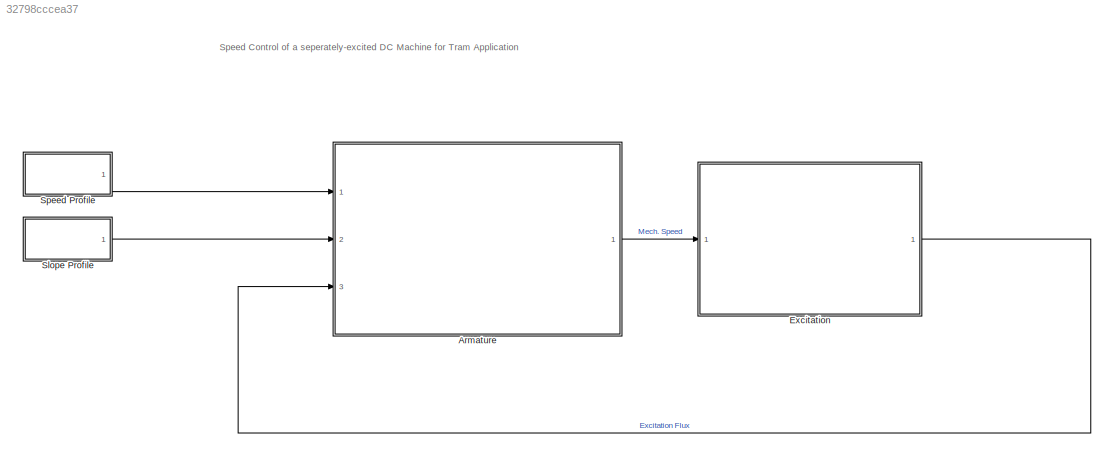
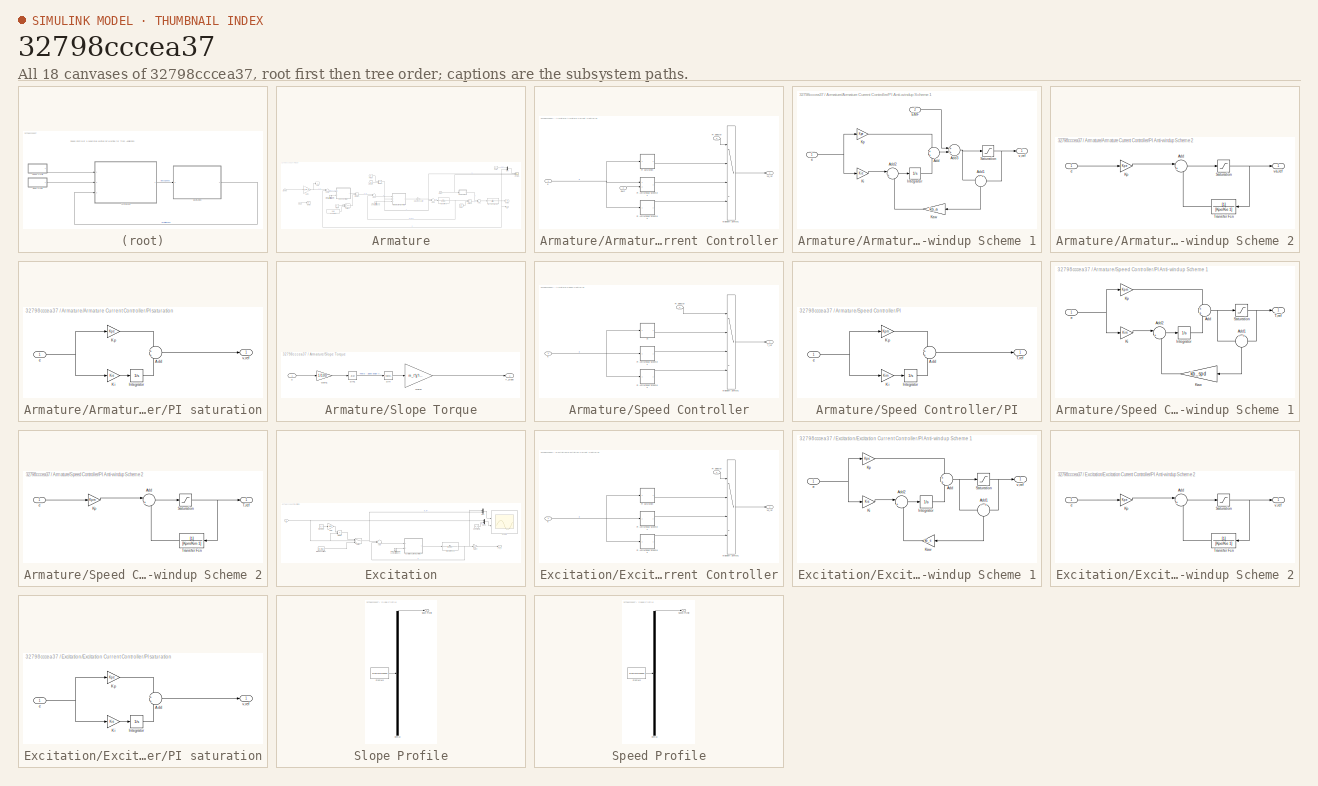
[diagram: thumbnail index - all 18 canvases of the model, root first then tree order]
MODEL slx_32798cccea37
KIND model
CONFIG AbsTol = auto
CONFIG EnableMultiTasking = off
CONFIG FixedStep = auto
CONFIG MaxStep = auto
CONFIG MinStep = auto
CONFIG RelTol = 1e-3
CONFIG SampleTimeConstraint = Unconstrained
CONFIG Solver = VariableStepAuto
CONFIG SolverName = VariableStepAuto
CONFIG StartTime = 0.0
CONFIG StopTime = 700
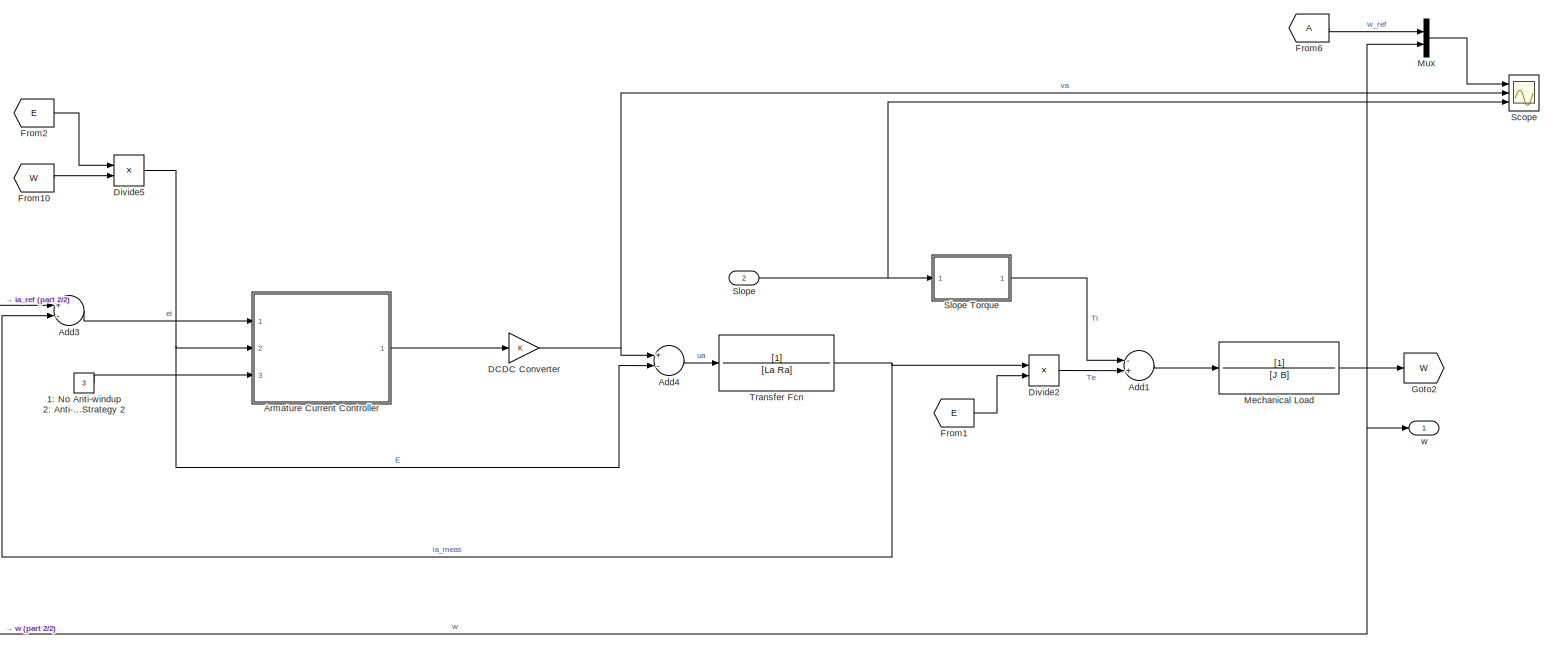
[diagram: Armature - part 1/2, right side, full height]
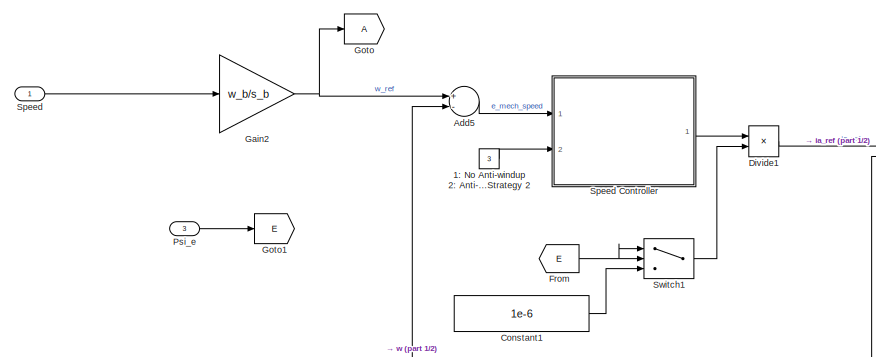
[diagram: Armature - part 2/2, middle left region]
BLOCK [SubSystem] Armature
  Ports = [3, 1]
  RequestExecContextInheritance = off
BLOCK [Constant] Armature/1: No Anti-windup 2: Anti-windup Stragtegy 1 3: Anti-windup Strategy 2
  Value = 3
BLOCK [Constant] Armature/1: No Anti-windup 2: Anti-windup Strategy 1 3: Anti-windup Strategy 2
  Value = 3
BLOCK [Sum] Armature/Add1
  InputSameDT = off
  Inputs = -+
  OutDataTypeStr = Inherit: Inherit via internal rule
  Ports = [2, 1]
  SaturateOnIntegerOverflow = off
BLOCK [Sum] Armature/Add3
  InputSameDT = off
  Inputs = +-
  OutDataTypeStr = Inherit: Inherit via internal rule
  Ports = [2, 1]
  SaturateOnIntegerOverflow = off
BLOCK [Sum] Armature/Add4
  InputSameDT = off
  Inputs = +-
  OutDataTypeStr = Inherit: Inherit via internal rule
  Ports = [2, 1]
  SaturateOnIntegerOverflow = off
BLOCK [Sum] Armature/Add5
  InputSameDT = off
  Inputs = +-
  OutDataTypeStr = Inherit: Inherit via internal rule
  Ports = [2, 1]
  SaturateOnIntegerOverflow = off
BLOCK [SubSystem] Armature/Armature Current Controller
  Ports = [3, 1]
  RequestExecContextInheritance = off
BLOCK [Inport] Armature/Armature Current Controller/EMF
  IconDisplay = Port number
  Port = 2
BLOCK [MultiPortSwitch] Armature/Armature Current Controller/Multiport Switch1
  InputSameDT = off
  Ports = [4, 1]
  SaturateOnIntegerOverflow = off
BLOCK [SubSystem] Armature/Armature Current Controller/PI Anti-windup Scheme 1
  Ports = [2, 1]
  RequestExecContextInheritance = off
BLOCK [Sum] Armature/Armature Current Controller/PI Anti-windup Scheme 1/Add
  IconShape = round
  InputSameDT = off
  OutDataTypeStr = Inherit: Inherit via internal rule
  Ports = [2, 1]
  SaturateOnIntegerOverflow = off
BLOCK [Sum] Armature/Armature Current Controller/PI Anti-windup Scheme 1/Add1
  IconShape = round
  InputSameDT = off
  Inputs = -+
  OutDataTypeStr = Inherit: Inherit via internal rule
  Ports = [2, 1]
  SaturateOnIntegerOverflow = off
BLOCK [Sum] Armature/Armature Current Controller/PI Anti-windup Scheme 1/Add2
  IconShape = round
  InputSameDT = off
  Inputs = |++
  OutDataTypeStr = Inherit: Inherit via internal rule
  Ports = [2, 1]
  SaturateOnIntegerOverflow = off
BLOCK [Sum] Armature/Armature Current Controller/PI Anti-windup Scheme 1/Add3
  InputSameDT = off
  OutDataTypeStr = Inherit: Inherit via internal rule
  Ports = [2, 1]
  SaturateOnIntegerOverflow = off
BLOCK [Inport] Armature/Armature Current Controller/PI Anti-windup Scheme 1/EMF
  IconDisplay = Port number
  Port = 2
BLOCK [Integrator] Armature/Armature Current Controller/PI Anti-windup Scheme 1/Integrator
  Ports = [1, 1]
BLOCK [Gain] Armature/Armature Current Controller/PI Anti-windup Scheme 1/Kaw
  Gain = kb_a
  OutDataTypeStr = Inherit: Inherit via internal rule
  ParamDataTypeStr = Inherit: Inherit via internal rule
  SaturateOnIntegerOverflow = off
BLOCK [Gain] Armature/Armature Current Controller/PI Anti-windup Scheme 1/Ki
  Gain = Kie
  OutDataTypeStr = Inherit: Inherit via internal rule
  ParamDataTypeStr = Inherit: Inherit via internal rule
  SaturateOnIntegerOverflow = off
BLOCK [Gain] Armature/Armature Current Controller/PI Anti-windup Scheme 1/Kp
  Gain = Kpe
  OutDataTypeStr = Inherit: Inherit via internal rule
  ParamDataTypeStr = Inherit: Inherit via internal rule
  SaturateOnIntegerOverflow = off
BLOCK [Saturate] Armature/Armature Current Controller/PI Anti-windup Scheme 1/Saturation
  InputPortMap = u0
  LowerLimit = -v_line
  Ports = [1, 1]
  UpperLimit = v_line
BLOCK [Inport] Armature/Armature Current Controller/PI Anti-windup Scheme 1/e
  IconDisplay = Port number
BLOCK [Outport] Armature/Armature Current Controller/PI Anti-windup Scheme 1/v,ref
  IconDisplay = Port number
BLOCK [SubSystem] Armature/Armature Current Controller/PI Anti-windup Scheme 2
  Ports = [1, 1]
  RequestExecContextInheritance = off
BLOCK [Sum] Armature/Armature Current Controller/PI Anti-windup Scheme 2/Add
  IconShape = round
  InputSameDT = off
  Inputs = |++
  OutDataTypeStr = Inherit: Inherit via internal rule
  Ports = [2, 1]
  SaturateOnIntegerOverflow = off
BLOCK [Gain] Armature/Armature Current Controller/PI Anti-windup Scheme 2/Kp
  Gain = Kpe
  OutDataTypeStr = Inherit: Inherit via internal rule
  ParamDataTypeStr = Inherit: Inherit via internal rule
  SaturateOnIntegerOverflow = off
BLOCK [Saturate] Armature/Armature Current Controller/PI Anti-windup Scheme 2/Saturation
  InputPortMap = u0
  LowerLimit = -v_line
  Ports = [1, 1]
  UpperLimit = v_line
BLOCK [TransferFcn] Armature/Armature Current Controller/PI Anti-windup Scheme 2/Transfer Fcn
  Denominator = [Kpe/Kie 1]
BLOCK [Inport] Armature/Armature Current Controller/PI Anti-windup Scheme 2/e
  IconDisplay = Port number
BLOCK [Outport] Armature/Armature Current Controller/PI Anti-windup Scheme 2/va,ref
  IconDisplay = Port number
BLOCK [Inport] Armature/Armature Current Controller/PI Selector 
  IconDisplay = Port number
  Port = 3
BLOCK [SubSystem] Armature/Armature Current Controller/PI saturation
  Ports = [1, 1]
  RequestExecContextInheritance = off
BLOCK [Sum] Armature/Armature Current Controller/PI saturation/Add
  IconShape = round
  InputSameDT = off
  OutDataTypeStr = Inherit: Inherit via internal rule
  Ports = [2, 1]
  SaturateOnIntegerOverflow = off
BLOCK [Integrator] Armature/Armature Current Controller/PI saturation/Integrator
  Ports = [1, 1]
BLOCK [Gain] Armature/Armature Current Controller/PI saturation/Ki
  Gain = Kie
  OutDataTypeStr = Inherit: Inherit via internal rule
  ParamDataTypeStr = Inherit: Inherit via internal rule
  SaturateOnIntegerOverflow = off
BLOCK [Gain] Armature/Armature Current Controller/PI saturation/Kp
  Gain = Kpe
  OutDataTypeStr = Inherit: Inherit via internal rule
  ParamDataTypeStr = Inherit: Inherit via internal rule
  SaturateOnIntegerOverflow = off
BLOCK [Inport] Armature/Armature Current Controller/PI saturation/e
  IconDisplay = Port number
BLOCK [Outport] Armature/Armature Current Controller/PI saturation/v,ref
  IconDisplay = Port number
BLOCK [Inport] Armature/Armature Current Controller/e
  IconDisplay = Port number
BLOCK [Outport] Armature/Armature Current Controller/va_ref 
  IconDisplay = Port number
BLOCK [Constant] Armature/Constant1
  Value = 1e-6
BLOCK [Gain] Armature/DCDC Converter
  OutDataTypeStr = Inherit: Inherit via internal rule
  ParamDataTypeStr = Inherit: Inherit via internal rule
  SaturateOnIntegerOverflow = off
BLOCK [Product] Armature/Divide1
  InputSameDT = off
  Inputs = */
  OutDataTypeStr = Inherit: Inherit via internal rule
  Ports = [2, 1]
  RndMeth = Floor
  SaturateOnIntegerOverflow = off
BLOCK [Product] Armature/Divide2
  InputSameDT = off
  Inputs = **
  OutDataTypeStr = Inherit: Inherit via internal rule
  Ports = [2, 1]
  RndMeth = Floor
  SaturateOnIntegerOverflow = off
BLOCK [Product] Armature/Divide5
  InputSameDT = off
  Inputs = **
  OutDataTypeStr = Inherit: Inherit via internal rule
  Ports = [2, 1]
  RndMeth = Floor
  SaturateOnIntegerOverflow = off
BLOCK [From] Armature/From
  GotoTag = E
BLOCK [From] Armature/From1
  GotoTag = E
BLOCK [From] Armature/From10
  GotoTag = W
BLOCK [From] Armature/From2
  GotoTag = E
BLOCK [From] Armature/From6
BLOCK [Gain] Armature/Gain2
  Gain = w_b/s_b
  OutDataTypeStr = Inherit: Inherit via internal rule
  ParamDataTypeStr = Inherit: Inherit via internal rule
  SaturateOnIntegerOverflow = off
BLOCK [Goto] Armature/Goto
BLOCK [Goto] Armature/Goto1
  GotoTag = E
BLOCK [Goto] Armature/Goto2
  GotoTag = W
BLOCK [TransferFcn] Armature/Mechanical Load
  Denominator = [J B]
BLOCK [Mux] Armature/Mux
  DisplayOption = bar
  Inputs = 2
  Ports = [2, 1]
BLOCK [Inport] Armature/Psi_e
  IconDisplay = Port number
  Port = 3
BLOCK [Scope] Armature/Scope
  Floating = off
  NumInputPorts = 3
  Ports = [3]
  ScopeSpecificationString = Simulink.scopes.TimeScopeBlockCfg('CurrentConfiguration', extmgr.ConfigurationSet(extmgr.Configuration('Core','General UI',true),extmgr.Configuration('Core','Source UI',true),extmgr.Configuration('Sources','WiredSimulink',true),extmgr.Configuration('Visuals','Time Domain',true,'SerializedDisplays',{struct('MinYLimReal','-49.22212','MaxYLimReal','442.99907','YLabelReal','','MinYLimMag','0.00000','M...<+2769ch>
BLOCK [Inport] Armature/Slope
  IconDisplay = Port number
  Port = 2
BLOCK [SubSystem] Armature/Slope Torque
  Ports = [1, 1]
  RequestExecContextInheritance = off
BLOCK [Gain] Armature/Slope Torque/Gain1
  Gain = 1/100
  OutDataTypeStr = Inherit: Inherit via internal rule
  ParamDataTypeStr = Inherit: Inherit via internal rule
  SaturateOnIntegerOverflow = off
BLOCK [Gain] Armature/Slope Torque/Gain2
  Gain = m_t*g*r_whl
  OutDataTypeStr = Inherit: Inherit via internal rule
  ParamDataTypeStr = Inherit: Inherit via internal rule
  SaturateOnIntegerOverflow = off
BLOCK [Inport] Armature/Slope Torque/S
  IconDisplay = Port number
BLOCK [Trigonometry] Armature/Slope Torque/Sin
  Ports = [1, 1]
BLOCK [Trigonometry] Armature/Slope Torque/Sin1
  Operator = atan
  Ports = [1, 1]
BLOCK [Outport] Armature/Slope Torque/T_slope
  IconDisplay = Port number
BLOCK [Inport] Armature/Speed
  IconDisplay = Port number
BLOCK [SubSystem] Armature/Speed Controller
  Ports = [2, 1]
  RequestExecContextInheritance = off
BLOCK [MultiPortSwitch] Armature/Speed Controller/Multiport Switch1
  InputSameDT = off
  Ports = [4, 1]
  SaturateOnIntegerOverflow = off
BLOCK [SubSystem] Armature/Speed Controller/PI
  Ports = [1, 1]
  RequestExecContextInheritance = off
BLOCK [SubSystem] Armature/Speed Controller/PI Anti-windup Scheme 1
  Ports = [1, 1]
  RequestExecContextInheritance = off
BLOCK [Sum] Armature/Speed Controller/PI Anti-windup Scheme 1/Add
  IconShape = round
  InputSameDT = off
  OutDataTypeStr = Inherit: Inherit via internal rule
  Ports = [2, 1]
  SaturateOnIntegerOverflow = off
BLOCK [Sum] Armature/Speed Controller/PI Anti-windup Scheme 1/Add1
  IconShape = round
  InputSameDT = off
  Inputs = -+
  OutDataTypeStr = Inherit: Inherit via internal rule
  Ports = [2, 1]
  SaturateOnIntegerOverflow = off
BLOCK [Sum] Armature/Speed Controller/PI Anti-windup Scheme 1/Add2
  IconShape = round
  InputSameDT = off
  Inputs = |++
  OutDataTypeStr = Inherit: Inherit via internal rule
  Ports = [2, 1]
  SaturateOnIntegerOverflow = off
BLOCK [Integrator] Armature/Speed Controller/PI Anti-windup Scheme 1/Integrator
  Ports = [1, 1]
BLOCK [Gain] Armature/Speed Controller/PI Anti-windup Scheme 1/Kaw
  Gain = kb_spd
  OutDataTypeStr = Inherit: Inherit via internal rule
  ParamDataTypeStr = Inherit: Inherit via internal rule
  SaturateOnIntegerOverflow = off
BLOCK [Gain] Armature/Speed Controller/PI Anti-windup Scheme 1/Ki
  Gain = Kim
  OutDataTypeStr = Inherit: Inherit via internal rule
  ParamDataTypeStr = Inherit: Inherit via internal rule
  SaturateOnIntegerOverflow = off
BLOCK [Gain] Armature/Speed Controller/PI Anti-windup Scheme 1/Kp
  Gain = Kpm
  OutDataTypeStr = Inherit: Inherit via internal rule
  ParamDataTypeStr = Inherit: Inherit via internal rule
  SaturateOnIntegerOverflow = off
BLOCK [Saturate] Armature/Speed Controller/PI Anti-windup Scheme 1/Saturation
  InputPortMap = u0
  LowerLimit = -Te_n
  Ports = [1, 1]
  UpperLimit = Te_n
BLOCK [Outport] Armature/Speed Controller/PI Anti-windup Scheme 1/T,ref
  IconDisplay = Port number
BLOCK [Inport] Armature/Speed Controller/PI Anti-windup Scheme 1/e
  IconDisplay = Port number
BLOCK [SubSystem] Armature/Speed Controller/PI Anti-windup Scheme 2
  Ports = [1, 1]
  RequestExecContextInheritance = off
BLOCK [Sum] Armature/Speed Controller/PI Anti-windup Scheme 2/Add
  IconShape = round
  InputSameDT = off
  Inputs = |++
  OutDataTypeStr = Inherit: Inherit via internal rule
  Ports = [2, 1]
  SaturateOnIntegerOverflow = off
BLOCK [Gain] Armature/Speed Controller/PI Anti-windup Scheme 2/Kp
  Gain = Kpm
  OutDataTypeStr = Inherit: Inherit via internal rule
  ParamDataTypeStr = Inherit: Inherit via internal rule
  SaturateOnIntegerOverflow = off
BLOCK [Saturate] Armature/Speed Controller/PI Anti-windup Scheme 2/Saturation
  InputPortMap = u0
  LowerLimit = -Te_n
  Ports = [1, 1]
  UpperLimit = Te_n
BLOCK [Outport] Armature/Speed Controller/PI Anti-windup Scheme 2/T,ref
  IconDisplay = Port number
BLOCK [TransferFcn] Armature/Speed Controller/PI Anti-windup Scheme 2/Transfer Fcn
  Denominator = [Kpm/Kim 1]
BLOCK [Inport] Armature/Speed Controller/PI Anti-windup Scheme 2/e
  IconDisplay = Port number
BLOCK [Inport] Armature/Speed Controller/PI Selector
  IconDisplay = Port number
  Port = 2
BLOCK [Sum] Armature/Speed Controller/PI/Add
  IconShape = round
  InputSameDT = off
  OutDataTypeStr = Inherit: Inherit via internal rule
  Ports = [2, 1]
  SaturateOnIntegerOverflow = off
BLOCK [Integrator] Armature/Speed Controller/PI/Integrator
  Ports = [1, 1]
BLOCK [Gain] Armature/Speed Controller/PI/Ki
  Gain = Kim
  OutDataTypeStr = Inherit: Inherit via internal rule
  ParamDataTypeStr = Inherit: Inherit via internal rule
  SaturateOnIntegerOverflow = off
BLOCK [Gain] Armature/Speed Controller/PI/Kp
  Gain = Kpm
  OutDataTypeStr = Inherit: Inherit via internal rule
  ParamDataTypeStr = Inherit: Inherit via internal rule
  SaturateOnIntegerOverflow = off
BLOCK [Outport] Armature/Speed Controller/PI/T,ref
  IconDisplay = Port number
BLOCK [Inport] Armature/Speed Controller/PI/e
  IconDisplay = Port number
BLOCK [Outport] Armature/Speed Controller/T_ref 
  IconDisplay = Port number
BLOCK [Inport] Armature/Speed Controller/e
  IconDisplay = Port number
BLOCK [Switch] Armature/Switch1
  Criteria = u2 > Threshold
  InputSameDT = off
  SaturateOnIntegerOverflow = off
BLOCK [TransferFcn] Armature/Transfer Fcn
  Denominator = [La Ra]
BLOCK [Outport] Armature/w
  IconDisplay = Port number
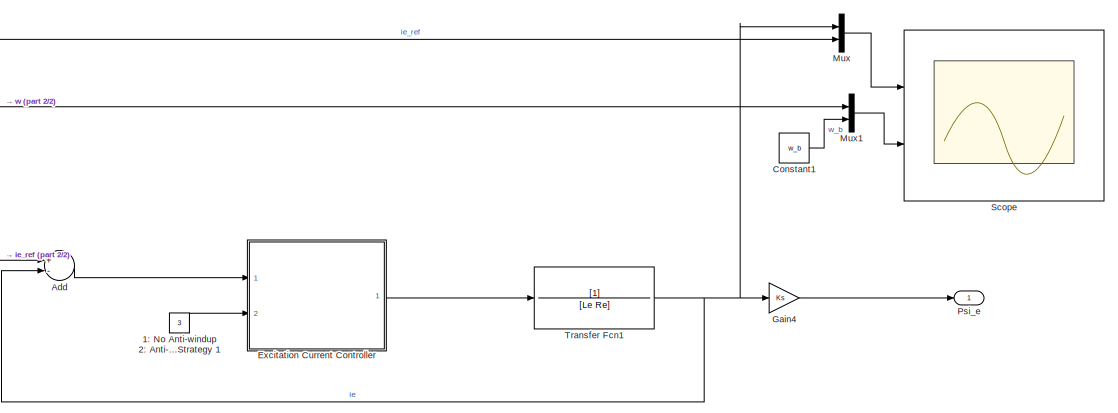
[diagram: Excitation - part 1/2, right side, full height]
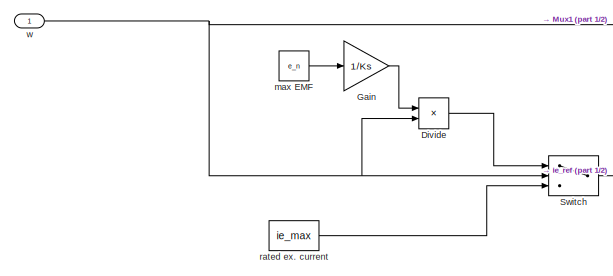
[diagram: Excitation - part 2/2, middle left region]
BLOCK [SubSystem] Excitation
  Ports = [1, 1]
  RequestExecContextInheritance = off
BLOCK [Constant] Excitation/1: No Anti-windup 2: Anti-windup Strategy 1 3: Anti-windup Strategy 1
  Value = 3
BLOCK [Sum] Excitation/Add
  InputSameDT = off
  Inputs = +-
  OutDataTypeStr = Inherit: Inherit via internal rule
  Ports = [2, 1]
  SaturateOnIntegerOverflow = off
BLOCK [Constant] Excitation/Constant1
  Value = w_b
BLOCK [Product] Excitation/Divide
  InputSameDT = off
  Inputs = */
  OutDataTypeStr = Inherit: Inherit via internal rule
  Ports = [2, 1]
  RndMeth = Floor
  SaturateOnIntegerOverflow = off
BLOCK [SubSystem] Excitation/Excitation Current Controller
  Ports = [2, 1]
  RequestExecContextInheritance = off
BLOCK [MultiPortSwitch] Excitation/Excitation Current Controller/Multiport Switch1
  InputSameDT = off
  Ports = [4, 1]
  SaturateOnIntegerOverflow = off
BLOCK [SubSystem] Excitation/Excitation Current Controller/PI Anti-windup Scheme 1
  Ports = [1, 1]
  RequestExecContextInheritance = off
BLOCK [Sum] Excitation/Excitation Current Controller/PI Anti-windup Scheme 1/Add
  IconShape = round
  InputSameDT = off
  OutDataTypeStr = Inherit: Inherit via internal rule
  Ports = [2, 1]
  SaturateOnIntegerOverflow = off
BLOCK [Sum] Excitation/Excitation Current Controller/PI Anti-windup Scheme 1/Add1
  IconShape = round
  InputSameDT = off
  Inputs = -+
  OutDataTypeStr = Inherit: Inherit via internal rule
  Ports = [2, 1]
  SaturateOnIntegerOverflow = off
BLOCK [Sum] Excitation/Excitation Current Controller/PI Anti-windup Scheme 1/Add2
  IconShape = round
  InputSameDT = off
  Inputs = |++
  OutDataTypeStr = Inherit: Inherit via internal rule
  Ports = [2, 1]
  SaturateOnIntegerOverflow = off
BLOCK [Integrator] Excitation/Excitation Current Controller/PI Anti-windup Scheme 1/Integrator
  Ports = [1, 1]
BLOCK [Gain] Excitation/Excitation Current Controller/PI Anti-windup Scheme 1/Kaw
  Gain = kb_e
  OutDataTypeStr = Inherit: Inherit via internal rule
  ParamDataTypeStr = Inherit: Inherit via internal rule
  SaturateOnIntegerOverflow = off
BLOCK [Gain] Excitation/Excitation Current Controller/PI Anti-windup Scheme 1/Ki
  Gain = Kie
  OutDataTypeStr = Inherit: Inherit via internal rule
  ParamDataTypeStr = Inherit: Inherit via internal rule
  SaturateOnIntegerOverflow = off
BLOCK [Gain] Excitation/Excitation Current Controller/PI Anti-windup Scheme 1/Kp
  Gain = Kpe
  OutDataTypeStr = Inherit: Inherit via internal rule
  ParamDataTypeStr = Inherit: Inherit via internal rule
  SaturateOnIntegerOverflow = off
BLOCK [Saturate] Excitation/Excitation Current Controller/PI Anti-windup Scheme 1/Saturation
  InputPortMap = u0
  LowerLimit = -ve_max
  Ports = [1, 1]
  UpperLimit = ve_max
BLOCK [Inport] Excitation/Excitation Current Controller/PI Anti-windup Scheme 1/e
  IconDisplay = Port number
BLOCK [Outport] Excitation/Excitation Current Controller/PI Anti-windup Scheme 1/v,ref
  IconDisplay = Port number
BLOCK [SubSystem] Excitation/Excitation Current Controller/PI Anti-windup Scheme 2
  Ports = [1, 1]
  RequestExecContextInheritance = off
BLOCK [Sum] Excitation/Excitation Current Controller/PI Anti-windup Scheme 2/Add
  IconShape = round
  InputSameDT = off
  Inputs = |++
  OutDataTypeStr = Inherit: Inherit via internal rule
  Ports = [2, 1]
  SaturateOnIntegerOverflow = off
BLOCK [Gain] Excitation/Excitation Current Controller/PI Anti-windup Scheme 2/Kp
  Gain = Kpe
  OutDataTypeStr = Inherit: Inherit via internal rule
  ParamDataTypeStr = Inherit: Inherit via internal rule
  SaturateOnIntegerOverflow = off
BLOCK [Saturate] Excitation/Excitation Current Controller/PI Anti-windup Scheme 2/Saturation
  InputPortMap = u0
  LowerLimit = -ve_max
  Ports = [1, 1]
  UpperLimit = ve_max
BLOCK [TransferFcn] Excitation/Excitation Current Controller/PI Anti-windup Scheme 2/Transfer Fcn
  Denominator = [Kpe/Kie 1]
BLOCK [Inport] Excitation/Excitation Current Controller/PI Anti-windup Scheme 2/e
  IconDisplay = Port number
BLOCK [Outport] Excitation/Excitation Current Controller/PI Anti-windup Scheme 2/v,ref
  IconDisplay = Port number
BLOCK [Inport] Excitation/Excitation Current Controller/PI Selector 
  IconDisplay = Port number
  Port = 2
BLOCK [SubSystem] Excitation/Excitation Current Controller/PI saturation
  Ports = [1, 1]
  RequestExecContextInheritance = off
BLOCK [Sum] Excitation/Excitation Current Controller/PI saturation/Add
  IconShape = round
  InputSameDT = off
  OutDataTypeStr = Inherit: Inherit via internal rule
  Ports = [2, 1]
  SaturateOnIntegerOverflow = off
BLOCK [Integrator] Excitation/Excitation Current Controller/PI saturation/Integrator
  Ports = [1, 1]
BLOCK [Gain] Excitation/Excitation Current Controller/PI saturation/Ki
  Gain = Kie
  OutDataTypeStr = Inherit: Inherit via internal rule
  ParamDataTypeStr = Inherit: Inherit via internal rule
  SaturateOnIntegerOverflow = off
BLOCK [Gain] Excitation/Excitation Current Controller/PI saturation/Kp
  Gain = Kpe
  OutDataTypeStr = Inherit: Inherit via internal rule
  ParamDataTypeStr = Inherit: Inherit via internal rule
  SaturateOnIntegerOverflow = off
BLOCK [Inport] Excitation/Excitation Current Controller/PI saturation/e
  IconDisplay = Port number
BLOCK [Outport] Excitation/Excitation Current Controller/PI saturation/v,ref
  IconDisplay = Port number
BLOCK [Inport] Excitation/Excitation Current Controller/e
  IconDisplay = Port number
BLOCK [Outport] Excitation/Excitation Current Controller/ve_ref 
  IconDisplay = Port number
BLOCK [Gain] Excitation/Gain
  Gain = 1/Ks
  OutDataTypeStr = Inherit: Inherit via internal rule
  ParamDataTypeStr = Inherit: Inherit via internal rule
  SaturateOnIntegerOverflow = off
BLOCK [Gain] Excitation/Gain4
  Gain = Ks
  OutDataTypeStr = Inherit: Inherit via internal rule
  ParamDataTypeStr = Inherit: Inherit via internal rule
  SaturateOnIntegerOverflow = off
BLOCK [Mux] Excitation/Mux
  DisplayOption = bar
  Inputs = 2
  Ports = [2, 1]
BLOCK [Mux] Excitation/Mux1
  DisplayOption = bar
  Inputs = 2
  Ports = [2, 1]
BLOCK [Outport] Excitation/Psi_e
  IconDisplay = Port number
BLOCK [Scope] Excitation/Scope
  Floating = off
  NumInputPorts = 2
  Ports = [2]
  ScopeSpecificationString = Simulink.scopes.TimeScopeBlockCfg('CurrentConfiguration', extmgr.ConfigurationSet(extmgr.Configuration('Core','General UI',true),extmgr.Configuration('Core','Source UI',true),extmgr.Configuration('Sources','WiredSimulink',true,'DataLoggingVariableName','ScopeData1'),extmgr.Configuration('Visuals','Time Domain',true,'SerializedDisplays',{struct('MinYLimReal','-0.125','MaxYLimReal','1.125','YLabelRe...<+2074ch>
BLOCK [Switch] Excitation/Switch
  Criteria = u2 > Threshold
  InputSameDT = off
  SaturateOnIntegerOverflow = off
  Threshold = w_b
BLOCK [TransferFcn] Excitation/Transfer Fcn1
  Denominator = [Le Re]
BLOCK [Constant] Excitation/max EMF
  Value = e_n
BLOCK [Constant] Excitation/rated ex. current
  Value = ie_max
BLOCK [Inport] Excitation/w
  IconDisplay = Port number
BLOCK [SubSystem] Slope Profile
  ClipboardFcn = sigbuilder_block('clipboard');
  CloseFcn = sigbuilder_block('close');
  ContinueFcn = sigbuilder_block('continue');
  CopyFcn = sigbuilder_block('copy');
  DeleteFcn = sigbuilder_block('delete');
  LoadFcn = sigbuilder_block('load');
  MaskHideContents = on
  ModelCloseFcn = sigbuilder_block('modelClose');
  NameChangeFcn = sigbuilder_block('namechange');
  OpenFcn = sigbuilder_block('open',[437.6 199.2 550.4 400 ]);
  PauseFcn = sigbuilder_block('pause');
  Ports = [0, 1]
  PreSaveFcn = sigbuilder_block('preSave');
  RequestExecContextInheritance = off
  StartFcn = sigbuilder_block('start');
  StopFcn = sigbuilder_block('stop');
  Tag = STV Subsys
BLOCK [Demux] Slope Profile/Demux
  Outputs = 1
  Ports = [1, 1]
  Tag = STV Demux
BLOCK [FromWorkspace] Slope Profile/FromWs
  SampleTime = 0
  Tag = STV FromWs
  VariableName = tuvar
  ZeroCross = on
BLOCK [Outport] Slope Profile/Slope Profile
  IconDisplay = Port number
  Tag = STV Outport
BLOCK [SubSystem] Speed Profile
  ClipboardFcn = sigbuilder_block('clipboard');
  CloseFcn = sigbuilder_block('close');
  ContinueFcn = sigbuilder_block('continue');
  CopyFcn = sigbuilder_block('copy');
  DeleteFcn = sigbuilder_block('delete');
  LoadFcn = sigbuilder_block('load');
  MaskHideContents = on
  ModelCloseFcn = sigbuilder_block('modelClose');
  NameChangeFcn = sigbuilder_block('namechange');
  OpenFcn = sigbuilder_block('open',[437.6 199.2 550.4 400 ]);
  PauseFcn = sigbuilder_block('pause');
  Ports = [0, 1]
  PreSaveFcn = sigbuilder_block('preSave');
  RequestExecContextInheritance = off
  StartFcn = sigbuilder_block('start');
  StopFcn = sigbuilder_block('stop');
  Tag = STV Subsys
BLOCK [Demux] Speed Profile/Demux
  Outputs = 1
  Ports = [1, 1]
  Tag = STV Demux
BLOCK [FromWorkspace] Speed Profile/FromWs
  SampleTime = 0
  Tag = STV FromWs
  VariableName = tuvar
  ZeroCross = on
BLOCK [Outport] Speed Profile/Speed Profile
  IconDisplay = Port number
  Tag = STV Outport
ANNOTATION (root): Speed Control of a seperately-excited DC Machine for Tram Application
LINE Armature/1: No Anti-windup 2: Anti-windup Stragtegy 1 3: Anti-windup Strategy 2:1 -> Armature/Speed Controller:2
LINE Armature/1: No Anti-windup 2: Anti-windup Strategy 1 3: Anti-windup Strategy 2:1 -> Armature/Armature Current Controller:3
LINE Armature/Add1:1 -> Armature/Mechanical Load:1
LINE Armature/Add3:1 -> Armature/Armature Current Controller:1
LINE Armature/Add4:1 -> Armature/Transfer Fcn:1
LINE Armature/Add5:1 -> Armature/Speed Controller:1
LINE Armature/Armature Current Controller/EMF:1 -> Armature/Armature Current Controller/PI Anti-windup Scheme 1:2
LINE Armature/Armature Current Controller/Multiport Switch1:1 -> Armature/Armature Current Controller/va_ref :1
LINE Armature/Armature Current Controller/PI Anti-windup Scheme 1/Add1:1 -> Armature/Armature Current Controller/PI Anti-windup Scheme 1/Kaw:1
LINE Armature/Armature Current Controller/PI Anti-windup Scheme 1/Add2:1 -> Armature/Armature Current Controller/PI Anti-windup Scheme 1/Integrator:1
NET Armature/Armature Current Controller/PI Anti-windup Scheme 1/Add3:1 -> Armature/Armature Current Controller/PI Anti-windup Scheme 1/Add1:1, Armature/Armature Current Controller/PI Anti-windup Scheme 1/Saturation:1
LINE Armature/Armature Current Controller/PI Anti-windup Scheme 1/Add:1 -> Armature/Armature Current Controller/PI Anti-windup Scheme 1/Add3:2
LINE Armature/Armature Current Controller/PI Anti-windup Scheme 1/EMF:1 -> Armature/Armature Current Controller/PI Anti-windup Scheme 1/Add3:1
LINE Armature/Armature Current Controller/PI Anti-windup Scheme 1/Integrator:1 -> Armature/Armature Current Controller/PI Anti-windup Scheme 1/Add:2
LINE Armature/Armature Current Controller/PI Anti-windup Scheme 1/Kaw:1 -> Armature/Armature Current Controller/PI Anti-windup Scheme 1/Add2:2
LINE Armature/Armature Current Controller/PI Anti-windup Scheme 1/Ki:1 -> Armature/Armature Current Controller/PI Anti-windup Scheme 1/Add2:1
LINE Armature/Armature Current Controller/PI Anti-windup Scheme 1/Kp:1 -> Armature/Armature Current Controller/PI Anti-windup Scheme 1/Add:1
NET Armature/Armature Current Controller/PI Anti-windup Scheme 1/Saturation:1 -> Armature/Armature Current Controller/PI Anti-windup Scheme 1/Add1:2, Armature/Armature Current Controller/PI Anti-windup Scheme 1/v,ref:1
NET Armature/Armature Current Controller/PI Anti-windup Scheme 1/e:1 -> Armature/Armature Current Controller/PI Anti-windup Scheme 1/Ki:1, Armature/Armature Current Controller/PI Anti-windup Scheme 1/Kp:1
LINE Armature/Armature Current Controller/PI Anti-windup Scheme 1:1 -> Armature/Armature Current Controller/Multiport Switch1:3
LINE Armature/Armature Current Controller/PI Anti-windup Scheme 2/Add:1 -> Armature/Armature Current Controller/PI Anti-windup Scheme 2/Saturation:1
LINE Armature/Armature Current Controller/PI Anti-windup Scheme 2/Kp:1 -> Armature/Armature Current Controller/PI Anti-windup Scheme 2/Add:1
NET Armature/Armature Current Controller/PI Anti-windup Scheme 2/Saturation:1 -> Armature/Armature Current Controller/PI Anti-windup Scheme 2/Transfer Fcn:1, Armature/Armature Current Controller/PI Anti-windup Scheme 2/va,ref:1
LINE Armature/Armature Current Controller/PI Anti-windup Scheme 2/Transfer Fcn:1 -> Armature/Armature Current Controller/PI Anti-windup Scheme 2/Add:2
LINE Armature/Armature Current Controller/PI Anti-windup Scheme 2/e:1 -> Armature/Armature Current Controller/PI Anti-windup Scheme 2/Kp:1
LINE Armature/Armature Current Controller/PI Anti-windup Scheme 2:1 -> Armature/Armature Current Controller/Multiport Switch1:4
LINE Armature/Armature Current Controller/PI Selector :1 -> Armature/Armature Current Controller/Multiport Switch1:1
LINE Armature/Armature Current Controller/PI saturation/Add:1 -> Armature/Armature Current Controller/PI saturation/v,ref:1
LINE Armature/Armature Current Controller/PI saturation/Integrator:1 -> Armature/Armature Current Controller/PI saturation/Add:2
LINE Armature/Armature Current Controller/PI saturation/Ki:1 -> Armature/Armature Current Controller/PI saturation/Integrator:1
LINE Armature/Armature Current Controller/PI saturation/Kp:1 -> Armature/Armature Current Controller/PI saturation/Add:1
NET Armature/Armature Current Controller/PI saturation/e:1 -> Armature/Armature Current Controller/PI saturation/Ki:1, Armature/Armature Current Controller/PI saturation/Kp:1
LINE Armature/Armature Current Controller/PI saturation:1 -> Armature/Armature Current Controller/Multiport Switch1:2
NET Armature/Armature Current Controller/e:1 -> Armature/Armature Current Controller/PI Anti-windup Scheme 1:1, Armature/Armature Current Controller/PI Anti-windup Scheme 2:1, Armature/Armature Current Controller/PI saturation:1
LINE Armature/Armature Current Controller:1 -> Armature/DCDC Converter:1
LINE Armature/Constant1:1 -> Armature/Switch1:3
NET Armature/DCDC Converter:1 -> Armature/Add4:1, Armature/Scope:2
LINE Armature/Divide1:1 -> Armature/Add3:1
LINE Armature/Divide2:1 -> Armature/Add1:2
NET Armature/Divide5:1 -> Armature/Add4:2, Armature/Armature Current Controller:2
LINE Armature/From10:1 -> Armature/Divide5:2
LINE Armature/From1:1 -> Armature/Divide2:2
LINE Armature/From2:1 -> Armature/Divide5:1
LINE Armature/From6:1 -> Armature/Mux:1
NET Armature/From:1 -> Armature/Switch1:1, Armature/Switch1:2
NET Armature/Gain2:1 -> Armature/Add5:1, Armature/Goto:1
NET Armature/Mechanical Load:1 -> Armature/Add5:2, Armature/Goto2:1, Armature/Mux:2, Armature/w:1
LINE Armature/Mux:1 -> Armature/Scope:1
LINE Armature/Psi_e:1 -> Armature/Goto1:1
LINE Armature/Slope Torque/Gain1:1 -> Armature/Slope Torque/Sin1:1
LINE Armature/Slope Torque/Gain2:1 -> Armature/Slope Torque/T_slope:1
LINE Armature/Slope Torque/S:1 -> Armature/Slope Torque/Gain1:1
LINE Armature/Slope Torque/Sin1:1 -> Armature/Slope Torque/Sin:1
LINE Armature/Slope Torque/Sin:1 -> Armature/Slope Torque/Gain2:1
LINE Armature/Slope Torque:1 -> Armature/Add1:1
NET Armature/Slope:1 -> Armature/Scope:3, Armature/Slope Torque:1
LINE Armature/Speed Controller/Multiport Switch1:1 -> Armature/Speed Controller/T_ref :1
LINE Armature/Speed Controller/PI Anti-windup Scheme 1/Add1:1 -> Armature/Speed Controller/PI Anti-windup Scheme 1/Kaw:1
LINE Armature/Speed Controller/PI Anti-windup Scheme 1/Add2:1 -> Armature/Speed Controller/PI Anti-windup Scheme 1/Integrator:1
NET Armature/Speed Controller/PI Anti-windup Scheme 1/Add:1 -> Armature/Speed Controller/PI Anti-windup Scheme 1/Add1:1, Armature/Speed Controller/PI Anti-windup Scheme 1/Saturation:1
LINE Armature/Speed Controller/PI Anti-windup Scheme 1/Integrator:1 -> Armature/Speed Controller/PI Anti-windup Scheme 1/Add:2
LINE Armature/Speed Controller/PI Anti-windup Scheme 1/Kaw:1 -> Armature/Speed Controller/PI Anti-windup Scheme 1/Add2:2
LINE Armature/Speed Controller/PI Anti-windup Scheme 1/Ki:1 -> Armature/Speed Controller/PI Anti-windup Scheme 1/Add2:1
LINE Armature/Speed Controller/PI Anti-windup Scheme 1/Kp:1 -> Armature/Speed Controller/PI Anti-windup Scheme 1/Add:1
NET Armature/Speed Controller/PI Anti-windup Scheme 1/Saturation:1 -> Armature/Speed Controller/PI Anti-windup Scheme 1/Add1:2, Armature/Speed Controller/PI Anti-windup Scheme 1/T,ref:1
NET Armature/Speed Controller/PI Anti-windup Scheme 1/e:1 -> Armature/Speed Controller/PI Anti-windup Scheme 1/Ki:1, Armature/Speed Controller/PI Anti-windup Scheme 1/Kp:1
LINE Armature/Speed Controller/PI Anti-windup Scheme 1:1 -> Armature/Speed Controller/Multiport Switch1:3
LINE Armature/Speed Controller/PI Anti-windup Scheme 2/Add:1 -> Armature/Speed Controller/PI Anti-windup Scheme 2/Saturation:1
LINE Armature/Speed Controller/PI Anti-windup Scheme 2/Kp:1 -> Armature/Speed Controller/PI Anti-windup Scheme 2/Add:1
NET Armature/Speed Controller/PI Anti-windup Scheme 2/Saturation:1 -> Armature/Speed Controller/PI Anti-windup Scheme 2/T,ref:1, Armature/Speed Controller/PI Anti-windup Scheme 2/Transfer Fcn:1
LINE Armature/Speed Controller/PI Anti-windup Scheme 2/Transfer Fcn:1 -> Armature/Speed Controller/PI Anti-windup Scheme 2/Add:2
LINE Armature/Speed Controller/PI Anti-windup Scheme 2/e:1 -> Armature/Speed Controller/PI Anti-windup Scheme 2/Kp:1
LINE Armature/Speed Controller/PI Anti-windup Scheme 2:1 -> Armature/Speed Controller/Multiport Switch1:4
LINE Armature/Speed Controller/PI Selector:1 -> Armature/Speed Controller/Multiport Switch1:1
LINE Armature/Speed Controller/PI/Add:1 -> Armature/Speed Controller/PI/T,ref:1
LINE Armature/Speed Controller/PI/Integrator:1 -> Armature/Speed Controller/PI/Add:2
LINE Armature/Speed Controller/PI/Ki:1 -> Armature/Speed Controller/PI/Integrator:1
LINE Armature/Speed Controller/PI/Kp:1 -> Armature/Speed Controller/PI/Add:1
NET Armature/Speed Controller/PI/e:1 -> Armature/Speed Controller/PI/Ki:1, Armature/Speed Controller/PI/Kp:1
LINE Armature/Speed Controller/PI:1 -> Armature/Speed Controller/Multiport Switch1:2
NET Armature/Speed Controller/e:1 -> Armature/Speed Controller/PI Anti-windup Scheme 1:1, Armature/Speed Controller/PI Anti-windup Scheme 2:1, Armature/Speed Controller/PI:1
LINE Armature/Speed Controller:1 -> Armature/Divide1:1
LINE Armature/Speed:1 -> Armature/Gain2:1
LINE Armature/Switch1:1 -> Armature/Divide1:2
NET Armature/Transfer Fcn:1 -> Armature/Add3:2, Armature/Divide2:1
LINE Armature:1 -> Excitation:1
LINE Excitation/1: No Anti-windup 2: Anti-windup Strategy 1 3: Anti-windup Strategy 1:1 -> Excitation/Excitation Current Controller:2
LINE Excitation/Add:1 -> Excitation/Excitation Current Controller:1
LINE Excitation/Constant1:1 -> Excitation/Mux1:2
LINE Excitation/Divide:1 -> Excitation/Switch:1
LINE Excitation/Excitation Current Controller/Multiport Switch1:1 -> Excitation/Excitation Current Controller/ve_ref :1
LINE Excitation/Excitation Current Controller/PI Anti-windup Scheme 1/Add1:1 -> Excitation/Excitation Current Controller/PI Anti-windup Scheme 1/Kaw:1
LINE Excitation/Excitation Current Controller/PI Anti-windup Scheme 1/Add2:1 -> Excitation/Excitation Current Controller/PI Anti-windup Scheme 1/Integrator:1
NET Excitation/Excitation Current Controller/PI Anti-windup Scheme 1/Add:1 -> Excitation/Excitation Current Controller/PI Anti-windup Scheme 1/Add1:1, Excitation/Excitation Current Controller/PI Anti-windup Scheme 1/Saturation:1
LINE Excitation/Excitation Current Controller/PI Anti-windup Scheme 1/Integrator:1 -> Excitation/Excitation Current Controller/PI Anti-windup Scheme 1/Add:2
LINE Excitation/Excitation Current Controller/PI Anti-windup Scheme 1/Kaw:1 -> Excitation/Excitation Current Controller/PI Anti-windup Scheme 1/Add2:2
LINE Excitation/Excitation Current Controller/PI Anti-windup Scheme 1/Ki:1 -> Excitation/Excitation Current Controller/PI Anti-windup Scheme 1/Add2:1
LINE Excitation/Excitation Current Controller/PI Anti-windup Scheme 1/Kp:1 -> Excitation/Excitation Current Controller/PI Anti-windup Scheme 1/Add:1
NET Excitation/Excitation Current Controller/PI Anti-windup Scheme 1/Saturation:1 -> Excitation/Excitation Current Controller/PI Anti-windup Scheme 1/Add1:2, Excitation/Excitation Current Controller/PI Anti-windup Scheme 1/v,ref:1
NET Excitation/Excitation Current Controller/PI Anti-windup Scheme 1/e:1 -> Excitation/Excitation Current Controller/PI Anti-windup Scheme 1/Ki:1, Excitation/Excitation Current Controller/PI Anti-windup Scheme 1/Kp:1
LINE Excitation/Excitation Current Controller/PI Anti-windup Scheme 1:1 -> Excitation/Excitation Current Controller/Multiport Switch1:3
LINE Excitation/Excitation Current Controller/PI Anti-windup Scheme 2/Add:1 -> Excitation/Excitation Current Controller/PI Anti-windup Scheme 2/Saturation:1
LINE Excitation/Excitation Current Controller/PI Anti-windup Scheme 2/Kp:1 -> Excitation/Excitation Current Controller/PI Anti-windup Scheme 2/Add:1
NET Excitation/Excitation Current Controller/PI Anti-windup Scheme 2/Saturation:1 -> Excitation/Excitation Current Controller/PI Anti-windup Scheme 2/Transfer Fcn:1, Excitation/Excitation Current Controller/PI Anti-windup Scheme 2/v,ref:1
LINE Excitation/Excitation Current Controller/PI Anti-windup Scheme 2/Transfer Fcn:1 -> Excitation/Excitation Current Controller/PI Anti-windup Scheme 2/Add:2
LINE Excitation/Excitation Current Controller/PI Anti-windup Scheme 2/e:1 -> Excitation/Excitation Current Controller/PI Anti-windup Scheme 2/Kp:1
LINE Excitation/Excitation Current Controller/PI Anti-windup Scheme 2:1 -> Excitation/Excitation Current Controller/Multiport Switch1:4
LINE Excitation/Excitation Current Controller/PI Selector :1 -> Excitation/Excitation Current Controller/Multiport Switch1:1
LINE Excitation/Excitation Current Controller/PI saturation/Add:1 -> Excitation/Excitation Current Controller/PI saturation/v,ref:1
LINE Excitation/Excitation Current Controller/PI saturation/Integrator:1 -> Excitation/Excitation Current Controller/PI saturation/Add:2
LINE Excitation/Excitation Current Controller/PI saturation/Ki:1 -> Excitation/Excitation Current Controller/PI saturation/Integrator:1
LINE Excitation/Excitation Current Controller/PI saturation/Kp:1 -> Excitation/Excitation Current Controller/PI saturation/Add:1
NET Excitation/Excitation Current Controller/PI saturation/e:1 -> Excitation/Excitation Current Controller/PI saturation/Ki:1, Excitation/Excitation Current Controller/PI saturation/Kp:1
LINE Excitation/Excitation Current Controller/PI saturation:1 -> Excitation/Excitation Current Controller/Multiport Switch1:2
NET Excitation/Excitation Current Controller/e:1 -> Excitation/Excitation Current Controller/PI Anti-windup Scheme 1:1, Excitation/Excitation Current Controller/PI Anti-windup Scheme 2:1, Excitation/Excitation Current Controller/PI saturation:1
LINE Excitation/Excitation Current Controller:1 -> Excitation/Transfer Fcn1:1
LINE Excitation/Gain4:1 -> Excitation/Psi_e:1
LINE Excitation/Gain:1 -> Excitation/Divide:1
LINE Excitation/Mux1:1 -> Excitation/Scope:2
LINE Excitation/Mux:1 -> Excitation/Scope:1
NET Excitation/Switch:1 -> Excitation/Add:1, Excitation/Mux:2
NET Excitation/Transfer Fcn1:1 -> Excitation/Add:2, Excitation/Gain4:1, Excitation/Mux:1
LINE Excitation/max EMF:1 -> Excitation/Gain:1
LINE Excitation/rated ex. current:1 -> Excitation/Switch:3
NET Excitation/w:1 -> Excitation/Divide:2, Excitation/Mux1:1, Excitation/Switch:2
LINE Excitation:1 -> Armature:3
LINE Slope Profile:1 -> Armature:2
LINE Speed Profile:1 -> Armature:1
note: NET lines group one-source signal fan-out (src -> all destinations, sorted); 1:1 wires keep LINE
